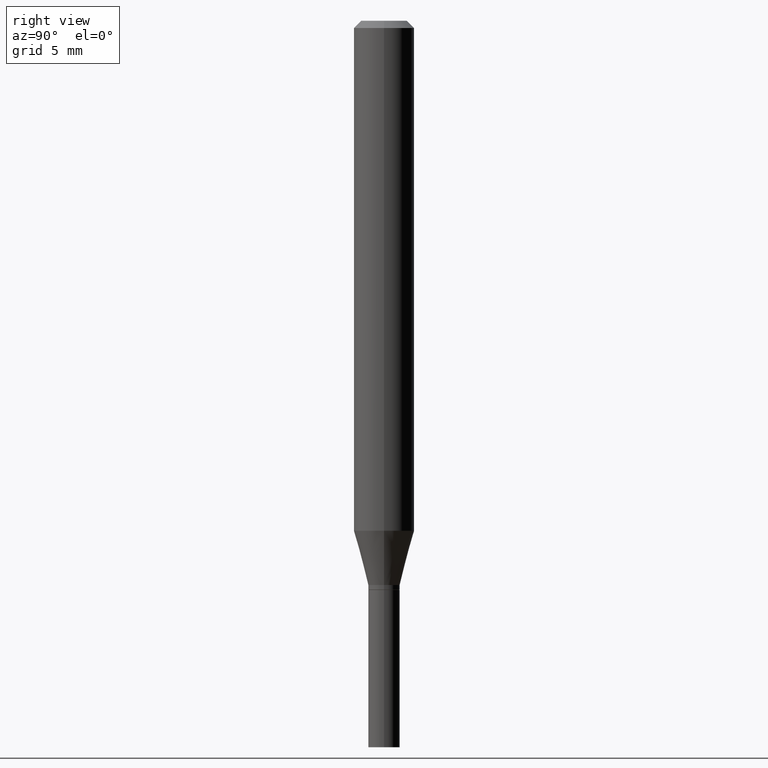
[diagram: clean part render]
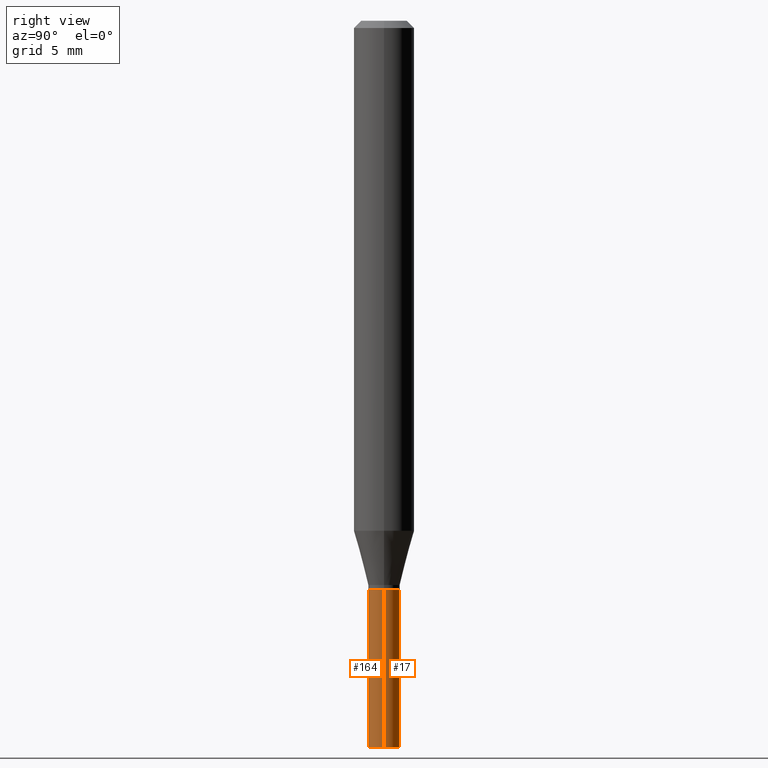
[diagram: same view with one multi-face feature highlighted, each face labeled with its STEP entity id]
A machine part, right view. The highlighted faces form ONE feature: a constant-radius fillet chain: 2 tangent blend faces with common blend radius 0.8255 mm. The faces share edges in the B-rep.
Their STEP definitions:
[1] entity #17 (Cylinder):
#17 = ADVANCED_FACE ( 'NONE', ( #409 ), #440, .T. ) ;
#35 = CARTESIAN_POINT ( 'NONE',  ( 0.03250000000000000111, -5.464168295289522318E-15, -1.500000000000000222 ) ) ;
#37 = CARTESIAN_POINT ( 'NONE',  ( -0.03250000000000000111, 2.309263891220325683E-16, -1.598653904332844407E-30 ) ) ;
#53 = LINE ( 'NONE', #195, #406 ) ;
#57 = CARTESIAN_POINT ( 'NONE',  ( -0.03250000000000000111, -4.438929901580675847E-15, -1.175000000000000266 ) ) ;
#73 = ORIENTED_EDGE ( 'NONE', *, *, #454, .T. ) ;
#76 = AXIS2_PLACEMENT_3D ( 'NONE', #243, #288, #422 ) ;
#93 = EDGE_CURVE ( 'NONE', #330, #248, #53, .T. ) ;
#115 = VERTEX_POINT ( 'NONE', #57 ) ;
#131 = DIRECTION ( 'NONE',  ( 1.000000000000000000, -6.982962677686258033E-15, 0.000000000000000000 ) ) ;
#191 = EDGE_LOOP ( 'NONE', ( #290, #73, #211, #208 ) ) ;
#195 = CARTESIAN_POINT ( 'NONE',  ( 0.03250000000000000111, -2.269462870248036484E-16, 1.584757452133678993E-30 ) ) ;
#208 = ORIENTED_EDGE ( 'NONE', *, *, #93, .F. ) ;
#211 = ORIENTED_EDGE ( 'NONE', *, *, #215, .F. ) ;
#215 = EDGE_CURVE ( 'NONE', #248, #115, #419, .T. ) ;
#229 = CARTESIAN_POINT ( 'NONE',  ( 0.000000000000000000, 0.000000000000000000, 0.000000000000000000 ) ) ;
#241 = AXIS2_PLACEMENT_3D ( 'NONE', #229, #377, #331 ) ;
#242 = DIRECTION ( 'NONE',  ( -2.445468806185136877E-29, 3.491481338843145188E-15, 1.000000000000000000 ) ) ;
#243 = CARTESIAN_POINT ( 'NONE',  ( 2.873425847267535838E-29, -4.102490573140696681E-15, -1.175000000000000266 ) ) ;
#248 = VERTEX_POINT ( 'NONE', #250 ) ;
#250 = CARTESIAN_POINT ( 'NONE',  ( 0.03250000000000000111, -4.329436860165500822E-15, -1.175000000000000266 ) ) ;
#253 = DIRECTION ( 'NONE',  ( -2.445468806185136597E-29, 3.491481338843145583E-15, 1.000000000000000000 ) ) ;
#277 = CIRCLE ( 'NONE', #394, 0.03250000000000000111 ) ;
#288 = DIRECTION ( 'NONE',  ( -2.445468806185136597E-29, 3.491481338843145583E-15, 1.000000000000000000 ) ) ;
#290 = ORIENTED_EDGE ( 'NONE', *, *, #351, .T. ) ;
#291 = CARTESIAN_POINT ( 'NONE',  ( 3.668203209277704895E-29, -5.237222008264718177E-15, -1.500000000000000222 ) ) ;
#300 = DIRECTION ( 'NONE',  ( -2.445468806185136877E-29, 3.491481338843145188E-15, 1.000000000000000000 ) ) ;
#330 = VERTEX_POINT ( 'NONE', #35 ) ;
#331 = DIRECTION ( 'NONE',  ( 1.000000000000000000, -6.982962677686265922E-15, 4.876176775795935232E-29 ) ) ;
#351 = EDGE_CURVE ( 'NONE', #330, #396, #277, .T. ) ;
#377 = DIRECTION ( 'NONE',  ( -2.445468806185136597E-29, 3.491481338843145583E-15, 1.000000000000000000 ) ) ;
#394 = AXIS2_PLACEMENT_3D ( 'NONE', #291, #253, #131 ) ;
#396 = VERTEX_POINT ( 'NONE', #433 ) ;
#406 = VECTOR ( 'NONE', #242, 39.37007874015748143 ) ;
#409 = FACE_OUTER_BOUND ( 'NONE', #191, .T. ) ;
#419 = CIRCLE ( 'NONE', #76, 0.03250000000000000111 ) ;
#420 = VECTOR ( 'NONE', #300, 39.37007874015748143 ) ;
#422 = DIRECTION ( 'NONE',  ( 1.000000000000000000, -6.982962677686273810E-15, 0.000000000000000000 ) ) ;
#433 = CARTESIAN_POINT ( 'NONE',  ( -0.03250000000000000111, -4.438929901580675847E-15, -1.500000000000000222 ) ) ;
#435 = LINE ( 'NONE', #37, #420 ) ;
#440 = CYLINDRICAL_SURFACE ( 'NONE', #241, 0.03250000000000000111 ) ;
#454 = EDGE_CURVE ( 'NONE', #396, #115, #435, .T. ) ;
[2] entity #164 (Cylinder):
#20 = CYLINDRICAL_SURFACE ( 'NONE', #62, 0.03250000000000000111 ) ;
#24 = DIRECTION ( 'NONE',  ( 1.000000000000000000, -6.982962677686265922E-15, 4.876176775795935232E-29 ) ) ;
#29 = ORIENTED_EDGE ( 'NONE', *, *, #454, .F. ) ;
#35 = CARTESIAN_POINT ( 'NONE',  ( 0.03250000000000000111, -5.464168295289522318E-15, -1.500000000000000222 ) ) ;
#37 = CARTESIAN_POINT ( 'NONE',  ( -0.03250000000000000111, 2.309263891220325683E-16, -1.598653904332844407E-30 ) ) ;
#53 = LINE ( 'NONE', #195, #406 ) ;
#57 = CARTESIAN_POINT ( 'NONE',  ( -0.03250000000000000111, -4.438929901580675847E-15, -1.175000000000000266 ) ) ;
#62 = AXIS2_PLACEMENT_3D ( 'NONE', #199, #161, #24 ) ;
#68 = ORIENTED_EDGE ( 'NONE', *, *, #284, .T. ) ;
#93 = EDGE_CURVE ( 'NONE', #330, #248, #53, .T. ) ;
#96 = CARTESIAN_POINT ( 'NONE',  ( 3.668203209277704895E-29, -5.237222008264718177E-15, -1.500000000000000222 ) ) ;
#98 = DIRECTION ( 'NONE',  ( 1.000000000000000000, -6.982962677686258033E-15, 0.000000000000000000 ) ) ;
#115 = VERTEX_POINT ( 'NONE', #57 ) ;
#132 = CIRCLE ( 'NONE', #184, 0.03250000000000000111 ) ;
#135 = ORIENTED_EDGE ( 'NONE', *, *, #382, .F. ) ;
#161 = DIRECTION ( 'NONE',  ( -2.445468806185136597E-29, 3.491481338843145583E-15, 1.000000000000000000 ) ) ;
#164 = ADVANCED_FACE ( 'NONE', ( #379 ), #20, .T. ) ;
#184 = AXIS2_PLACEMENT_3D ( 'NONE', #96, #205, #98 ) ;
#193 = AXIS2_PLACEMENT_3D ( 'NONE', #255, #294, #441 ) ;
#195 = CARTESIAN_POINT ( 'NONE',  ( 0.03250000000000000111, -2.269462870248036484E-16, 1.584757452133678993E-30 ) ) ;
#199 = CARTESIAN_POINT ( 'NONE',  ( 0.000000000000000000, 0.000000000000000000, 0.000000000000000000 ) ) ;
#205 = DIRECTION ( 'NONE',  ( -2.445468806185136597E-29, 3.491481338843145583E-15, 1.000000000000000000 ) ) ;
#217 = ORIENTED_EDGE ( 'NONE', *, *, #93, .T. ) ;
#227 = EDGE_LOOP ( 'NONE', ( #29, #68, #217, #135 ) ) ;
#242 = DIRECTION ( 'NONE',  ( -2.445468806185136877E-29, 3.491481338843145188E-15, 1.000000000000000000 ) ) ;
#248 = VERTEX_POINT ( 'NONE', #250 ) ;
#250 = CARTESIAN_POINT ( 'NONE',  ( 0.03250000000000000111, -4.329436860165500822E-15, -1.175000000000000266 ) ) ;
#255 = CARTESIAN_POINT ( 'NONE',  ( 2.873425847267535838E-29, -4.102490573140696681E-15, -1.175000000000000266 ) ) ;
#284 = EDGE_CURVE ( 'NONE', #396, #330, #132, .T. ) ;
#294 = DIRECTION ( 'NONE',  ( -2.445468806185136597E-29, 3.491481338843145583E-15, 1.000000000000000000 ) ) ;
#300 = DIRECTION ( 'NONE',  ( -2.445468806185136877E-29, 3.491481338843145188E-15, 1.000000000000000000 ) ) ;
#306 = CIRCLE ( 'NONE', #193, 0.03250000000000000111 ) ;
#330 = VERTEX_POINT ( 'NONE', #35 ) ;
#379 = FACE_OUTER_BOUND ( 'NONE', #227, .T. ) ;
#382 = EDGE_CURVE ( 'NONE', #115, #248, #306, .T. ) ;
#396 = VERTEX_POINT ( 'NONE', #433 ) ;
#406 = VECTOR ( 'NONE', #242, 39.37007874015748143 ) ;
#420 = VECTOR ( 'NONE', #300, 39.37007874015748143 ) ;
#433 = CARTESIAN_POINT ( 'NONE',  ( -0.03250000000000000111, -4.438929901580675847E-15, -1.500000000000000222 ) ) ;
#435 = LINE ( 'NONE', #37, #420 ) ;
#441 = DIRECTION ( 'NONE',  ( 1.000000000000000000, -6.982962677686273810E-15, 0.000000000000000000 ) ) ;
#454 = EDGE_CURVE ( 'NONE', #396, #115, #435, .T. ) ;